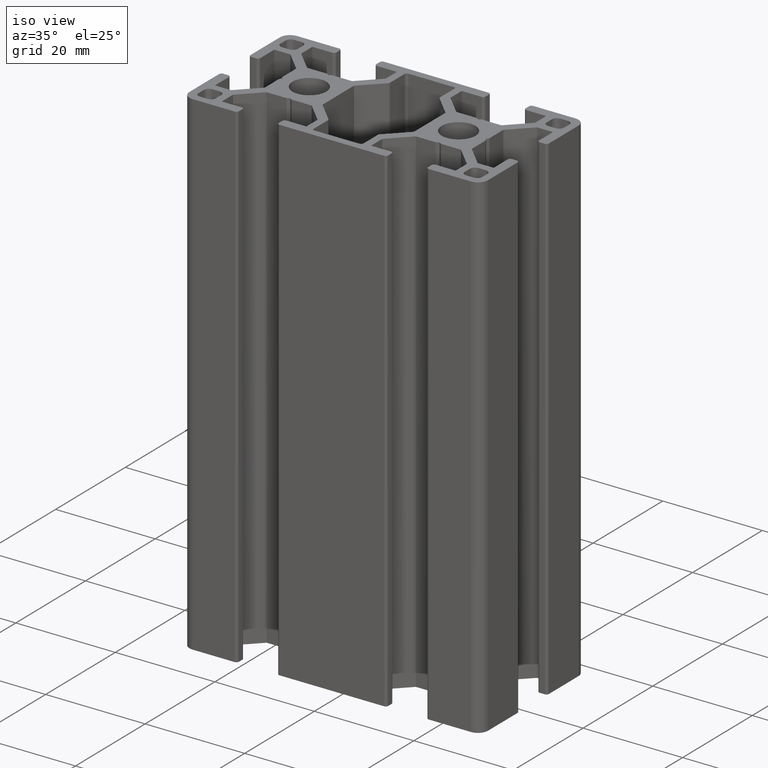
[diagram: clean part render]
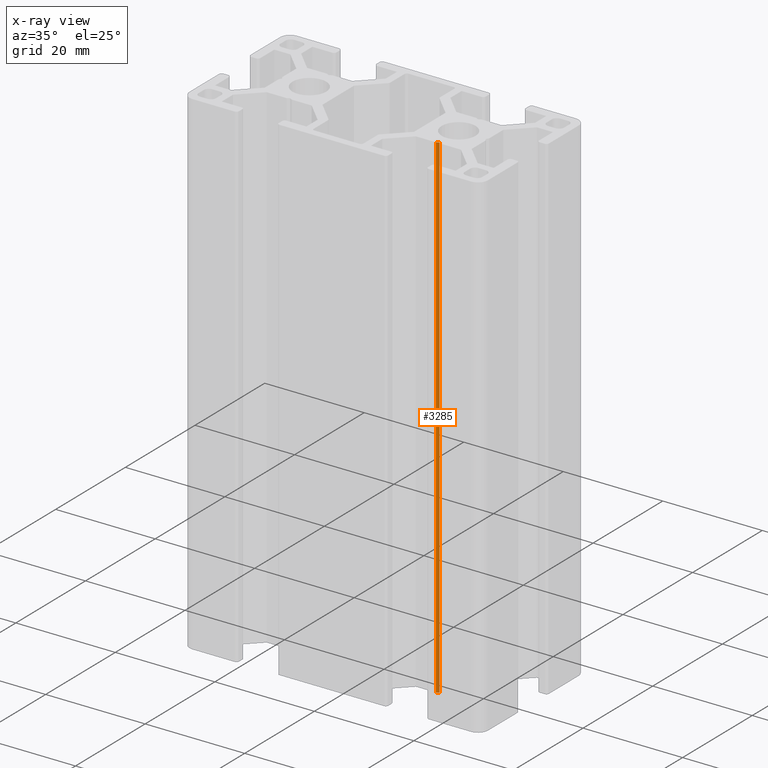
[diagram: x-ray — body ghosted, one internal face saturated and labeled with its STEP entity id]
A machine part, iso view, then the same camera in x-ray: the body is ghosted and one INTERNAL B-rep face — a face not visible from any outside direction — is saturated and labeled: STEP entity #3285.
In plain terms, the highlighted planar face has unit normal (-0.5, 0.866, 0).
Its self-contained STEP definition (entity closure, byte-faithful):
#263=FACE_OUTER_BOUND('',#429,.T.);
#429=EDGE_LOOP('',(#2403,#2404,#2405,#2406));
#713=LINE('',#5020,#1095);
#715=LINE('',#5024,#1097);
#716=LINE('',#5026,#1098);
#717=LINE('',#5027,#1099);
#1095=VECTOR('',#4051,100.);
#1097=VECTOR('',#4055,0.599999864833577);
#1098=VECTOR('',#4056,100.);
#1099=VECTOR('',#4057,0.599999864833577);
#1451=VERTEX_POINT('',#5017);
#1452=VERTEX_POINT('',#5019);
#1453=VERTEX_POINT('',#5023);
#1454=VERTEX_POINT('',#5025);
#1845=EDGE_CURVE('',#1452,#1451,#713,.T.);
#1847=EDGE_CURVE('',#1453,#1451,#715,.T.);
#1848=EDGE_CURVE('',#1454,#1453,#716,.T.);
#1849=EDGE_CURVE('',#1452,#1454,#717,.T.);
#2403=ORIENTED_EDGE('',*,*,#1847,.F.);
#2404=ORIENTED_EDGE('',*,*,#1848,.F.);
#2405=ORIENTED_EDGE('',*,*,#1849,.F.);
#2406=ORIENTED_EDGE('',*,*,#1845,.T.);
#3153=PLANE('',#3493);
#3285=ADVANCED_FACE('',(#263),#3153,.F.);
#3493=AXIS2_PLACEMENT_3D('',#5022,#4053,#4054);
#4051=DIRECTION('',(0.,0.,1.));
#4053=DIRECTION('center_axis',(-0.500000001638763,0.866025402838298,0.));
#4054=DIRECTION('ref_axis',(0.,0.,1.));
#4055=DIRECTION('',(0.866025402838299,0.500000001638763,0.));
#4056=DIRECTION('',(0.,0.,1.));
#4057=DIRECTION('',(-0.866025402838299,-0.500000001638763,0.));
#5017=CARTESIAN_POINT('',(15.,-5.49999877900002,100.));
#5019=CARTESIAN_POINT('',(15.,-5.49999877900002,0.));
#5020=CARTESIAN_POINT('',(15.,-5.49999877900002,0.));
#5022=CARTESIAN_POINT('Origin',(14.4803848753546,-5.79999871240006,0.));
#5023=CARTESIAN_POINT('',(14.4803848753546,-5.79999871240006,100.));
#5024=CARTESIAN_POINT('',(10.3059765906354,-8.21009446982229,100.));
#5025=CARTESIAN_POINT('',(14.4803848753546,-5.79999871240006,0.));
#5026=CARTESIAN_POINT('',(14.4803848753546,-5.79999871240006,0.));
#5027=CARTESIAN_POINT('',(10.3059765906354,-8.21009446982229,0.));